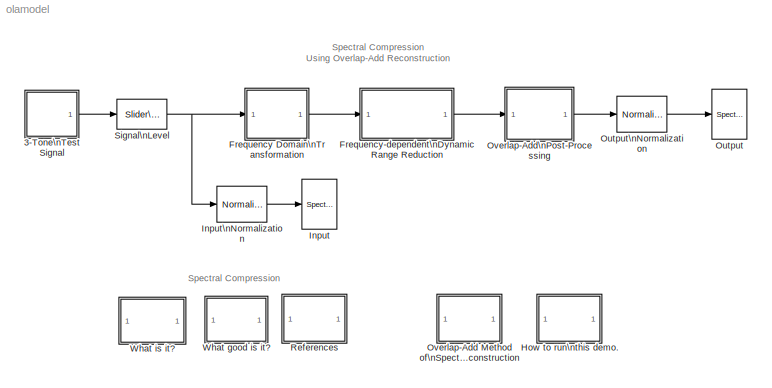
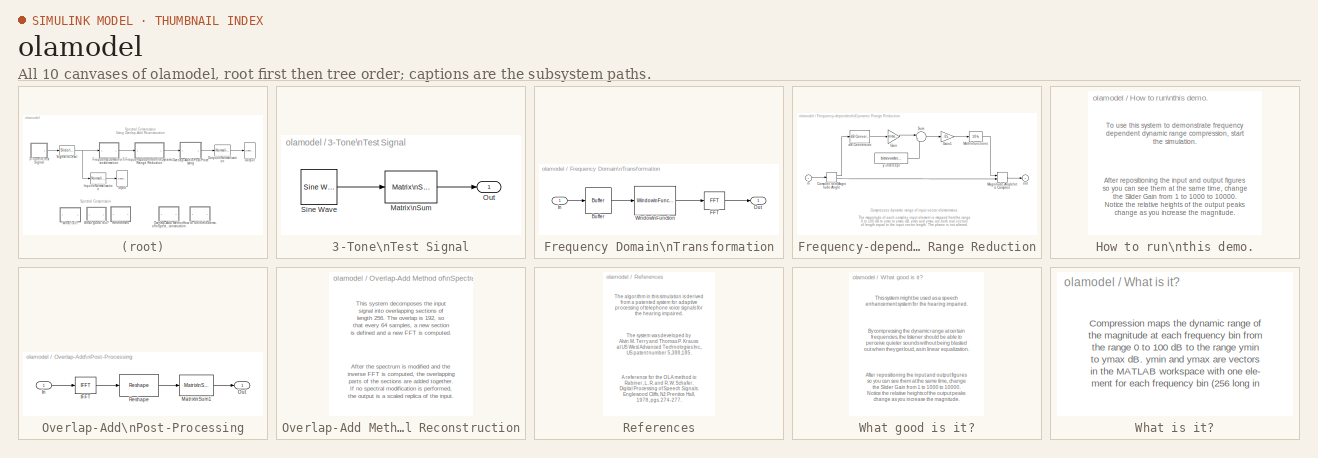
[diagram: thumbnail index - all 10 canvases of the model, root first then tree order]
MODEL olamodel
KIND model
CONFIG PostLoadFcn = olademo
BLOCK [SubSystem] 3-Tone\nTest Signal
  Ports = [0, 1]
  TreatAsAtomicUnit = off
BLOCK [Reference] 3-Tone\nTest Signal/Matrix\nSum  REF=dspmtrx3/Matrix\nSum
  Dim = Rows
  Ports = [1, 1]
  SourceBlock = dspmtrx3/Matrix\nSum
  SourceType = Matrix Sum
  accumFracLength = 30
  accumMode = Inherit via internal rule
  accumWordLength = 32
  additionalParams = off
  allowOverrides = on
  outputFracLength = 15
  outputMode = Same as input
  outputWordLength = 16
  overflowMode = off
  roundingMode = Floor
BLOCK [Outport] 3-Tone\nTest Signal/Out
  IconDisplay = Port number
BLOCK [Reference] 3-Tone\nTest Signal/Sine Wave  REF=dspsrcs4/Sine Wave
  Amplitude = 1
  CompMethod = Trigonometric fcn
  Frequency = [1024 2048 3072]
  OutComplex = Real
  Phase = 0
  Ports = [0, 1]
  ResetState = Restart at time zero
  SampleMode = Discrete
  SampleTime = 1/Fs
  SamplesPerFrame = 64
  SourceBlock = dspsrcs4/Sine Wave
  SourceType = Sine Wave
  TableSize = Speed
  additionalParams = off
  allowOverrides = on
  dataType = double
  fracBitsMode = Best precision
  numFracBits = 15
  udDataType = sfix(16)
  wordLen = 16
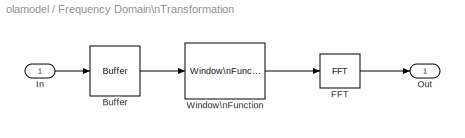
BLOCK [SubSystem] Frequency Domain\nTransformation
  Ports = [1, 1]
  TreatAsAtomicUnit = off
BLOCK [Reference] Frequency Domain\nTransformation/Buffer  REF=dspbuff3/Buffer
  N = 256
  Ports = [1, 1]
  SourceBlock = dspbuff3/Buffer
  SourceType = Buffer
  V = 192
  ic = 0
BLOCK [Reference] Frequency Domain\nTransformation/FFT  REF=dspxfrm3/FFT
  BitRevOrder = on
  CompMethod = Table lookup
  Ports = [1, 1]
  SkipNorm = off
  SourceBlock = dspxfrm3/FFT
  SourceType = FFT
  TableOpt = Speed
  accumFracLength = 30
  accumMode = Same as product output
  accumWordLength = 32
  additionalParams = off
  allowOverrides = on
  firstCoeffFracLength = 15
  firstCoeffMode = User-defined
  firstCoeffWordLength = 16
  outputFracLength = 15
  outputMode = Same as input
  outputWordLength = 16
  overflowMode = off
  prodOutputFracLength = 30
  prodOutputMode = Same as input
  prodOutputWordLength = 32
  roundingMode = Floor
BLOCK [Inport] Frequency Domain\nTransformation/In
  IconDisplay = Port number
BLOCK [Outport] Frequency Domain\nTransformation/Out
  IconDisplay = Port number
BLOCK [Reference] Frequency Domain\nTransformation/Window\nFunction  REF=dspsigops/Window\nFunction
  N = 64
  OptParams = off
  Ports = [1, 1]
  Rs = 50
  SourceBlock = dspsigops/Window\nFunction
  SourceType = Window Function
  UserParams = {1.0}
  UserWindow = hamming
  additionalParams = off
  allowOverrides = on
  beta = 10
  dataType = double
  firstCoeffFracLength = 15
  firstCoeffMode = Same word length as input
  firstCoeffWordLength = 16
  fracBitsMode = Best precision
  numFracBits = 15
  outputFracLength = 15
  outputMode = Same as input
  outputWordLength = 16
  overflowMode = off
  prodOutputFracLength = 15
  prodOutputMode = Inherit via internal rule
  prodOutputWordLength = 16
  roundingMode = Floor
  sampmode = Continuous
  samptime = 1
  udDataType = sfix(16)
  winmode = Apply window to input
  winsamp = Symmetric
  wintype = Hamming
  wordLen = 16
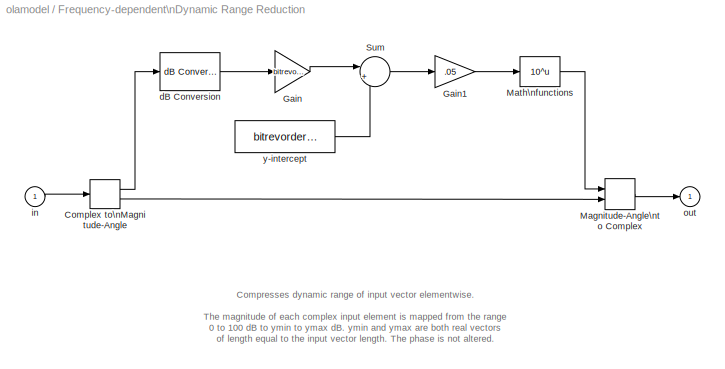
BLOCK [SubSystem] Frequency-dependent\nDynamic Range Reduction
  MaskDisplay = disp('Frequency\\n\\nCompression');\n
  MaskIconFrame = on
  MaskIconOpaque = on
  MaskIconRotate = none
  MaskIconUnits = autoscale
  MaskType = Complex Compression
  Ports = [1, 1]
  TreatAsAtomicUnit = off
BLOCK [ComplexToMagnitudeAngle] Frequency-dependent\nDynamic Range Reduction/Complex to\nMagnitude-Angle
  Output = Magnitude and angle
  Ports = [1, 2]
BLOCK [Gain] Frequency-dependent\nDynamic Range Reduction/Gain
  Gain = bitrevorder(0.01*(ymax-ymin).')
BLOCK [Gain] Frequency-dependent\nDynamic Range Reduction/Gain1
  Gain = .05
BLOCK [MagnitudeAngleToComplex] Frequency-dependent\nDynamic Range Reduction/Magnitude-Angle\nto Complex
  Input = Magnitude and angle
  Ports = [2, 1]
BLOCK [Math] Frequency-dependent\nDynamic Range Reduction/Math\nfunctions
  Operator = 10^u
  Ports = [1, 1]
BLOCK [Sum] Frequency-dependent\nDynamic Range Reduction/Sum
  IconShape = round
  Inputs = |++
  Ports = [2, 1]
BLOCK [Reference] Frequency-dependent\nDynamic Range Reduction/dB Conversion  REF=dspmathops/dB Conversion
  Ports = [1, 1]
  R = 1
  ShowPortLabels = on
  SourceBlock = dspmathops/dB Conversion
  SourceType = dB Conversion
  dBtype = dB
  fuzz = on
  intype = Amplitude
BLOCK [Inport] Frequency-dependent\nDynamic Range Reduction/in
  IconDisplay = Port number
BLOCK [Outport] Frequency-dependent\nDynamic Range Reduction/out
  IconDisplay = Port number
  InitialOutput = 0
BLOCK [Constant] Frequency-dependent\nDynamic Range Reduction/y-intercept
  Value = bitrevorder(ymin.')
  VectorParams1D = off
BLOCK [SubSystem] How to run\nthis demo.
  MaskDisplay = disp('Double\\nClick\\nHere')
  MaskIconFrame = on
  MaskIconOpaque = on
  MaskIconRotate = none
  MaskIconUnits = autoscale
  Ports = []
  TreatAsAtomicUnit = off
BLOCK [Reference] Input  REF=dspsnks4/Spectrum\nScope
  AxisGrid = on
  AxisLegend = off
  AxisProperties = off
  AxisZoom = on
  BufferSize = 128
  DisplayProperties = off
  Domain = Frequency
  FFTlength = 64
  FigPos = [50 147 414 338]
  FrameNumber = off
  HorizSpan = 1
  InheritXIncr = on
  LineProperties = off
  Memory = off
  OpenScopeAtSimStart = on
  OpenScopeImmediately = off
  Overlap = 64
  Ports = [1]
  ScopeProperties = on
  ShowPortLabels = off
  SourceBlock = dspsnks4/Spectrum\nScope
  SourceType = Spectrum Scope
  UseBuffer = off
  XIncr = 1
  XLabel = Samples
  XRange = [0...Fs/2]
  XUnits = Hertz
  YLabel = Magnitude
  YMax = 0.12
  YMin = 0
  YUnits = Magnitude
  inpFftLenInherit = off
  numAvg = 2
BLOCK [Reference] Input\nNormalization  REF=dspmathops/Normalization
  Bias = 1e-10
  NormType = 2-norm
  Ports = [1, 1]
  SourceBlock = dspmathops/Normalization
  SourceType = Normalization
  accumFracLength = 30
  accumMode = Same as product output
  accumWordLength = 32
  additionalParams = off
  allowOverrides = on
  outputFracLength = 32
  outputMode = Same as accumulator
  outputWordLength = 32
  overflowMode = off
  prodOutputFracLength = 32
  prodOutputMode = Same as input
  prodOutputWordLength = 32
  roundingMode = Floor
BLOCK [Reference] Output  REF=dspsnks4/Spectrum\nScope
  AxisGrid = on
  AxisLegend = off
  AxisProperties = off
  AxisZoom = on
  BufferSize = 128
  DisplayProperties = off
  Domain = Frequency
  FFTlength = 64
  FigPos = [500 147 415 337]
  FrameNumber = off
  HorizSpan = 1
  InheritXIncr = on
  LineProperties = off
  Memory = off
  OpenScopeAtSimStart = on
  OpenScopeImmediately = off
  Overlap = 64
  Ports = [1]
  ScopeProperties = on
  ShowPortLabels = off
  SourceBlock = dspsnks4/Spectrum\nScope
  SourceType = Spectrum Scope
  UseBuffer = off
  XIncr = 1
  XLabel = Samples
  XRange = [0...Fs/2]
  XUnits = Hertz
  YLabel = Magnitude
  YMax = 0.12
  YMin = 0
  YUnits = Magnitude
  inpFftLenInherit = off
  numAvg = 2
BLOCK [Reference] Output\nNormalization  REF=dspmathops/Normalization
  Bias = 1e-10
  NormType = 2-norm
  Ports = [1, 1]
  SourceBlock = dspmathops/Normalization
  SourceType = Normalization
  accumFracLength = 30
  accumMode = Same as product output
  accumWordLength = 32
  additionalParams = off
  allowOverrides = on
  outputFracLength = 32
  outputMode = Same as accumulator
  outputWordLength = 32
  overflowMode = off
  prodOutputFracLength = 32
  prodOutputMode = Same as input
  prodOutputWordLength = 32
  roundingMode = Floor
BLOCK [SubSystem] Overlap-Add Method of\nSpectral Reconstruction
  MaskDisplay = disp('Double\\nClick\\nHere')
  MaskIconFrame = on
  MaskIconOpaque = on
  MaskIconRotate = none
  MaskIconUnits = autoscale
  Ports = []
  TreatAsAtomicUnit = off
BLOCK [SubSystem] Overlap-Add\nPost-Processing
  Ports = [1, 1]
  TreatAsAtomicUnit = off
BLOCK [Reference] Overlap-Add\nPost-Processing/IFFT  REF=dspxfrm3/IFFT
  BitRevOrder = on
  CompMethod = Table lookup
  Ports = [1, 1]
  SkipNorm = off
  SourceBlock = dspxfrm3/IFFT
  SourceType = IFFT
  TableOpt = Speed
  accumFracLength = 30
  accumMode = Same as product output
  accumWordLength = 32
  additionalParams = off
  allowOverrides = on
  cs_in = on
  firstCoeffFracLength = 15
  firstCoeffMode = User-defined
  firstCoeffWordLength = 16
  mode = Real
  outputFracLength = 15
  outputMode = Same as input
  outputWordLength = 16
  overflowMode = off
  prodOutputFracLength = 30
  prodOutputMode = Same as input
  prodOutputWordLength = 32
  roundingMode = Floor
BLOCK [Inport] Overlap-Add\nPost-Processing/In
  IconDisplay = Port number
BLOCK [Reference] Overlap-Add\nPost-Processing/Matrix\nSum1  REF=dspmtrx3/Matrix\nSum
  Dim = Rows
  Ports = [1, 1]
  SourceBlock = dspmtrx3/Matrix\nSum
  SourceType = Matrix Sum
  accumFracLength = 30
  accumMode = Inherit via internal rule
  accumWordLength = 32
  additionalParams = off
  allowOverrides = on
  outputFracLength = 15
  outputMode = Same as input
  outputWordLength = 16
  overflowMode = off
  roundingMode = Floor
BLOCK [Outport] Overlap-Add\nPost-Processing/Out
  IconDisplay = Port number
BLOCK [Reference] Overlap-Add\nPost-Processing/Reshape  REF=simulink/Math\nOperations/Reshape
  OutputDimensionality = Customize
  OutputDimensions = [64 4]
  Ports = [1, 1]
  SourceBlock = simulink/Math\nOperations/Reshape
  SourceType = Reshape
BLOCK [SubSystem] References
  MaskDisplay = disp('Double\\nClick\\nHere')
  MaskIconFrame = on
  MaskIconOpaque = on
  MaskIconRotate = none
  MaskIconUnits = autoscale
  Ports = []
  TreatAsAtomicUnit = off
BLOCK [Reference] Signal\nLevel  REF=simulink/Math\nOperations/Slider\nGain
  Ports = [1, 1]
  ShowPortLabels = on
  SourceBlock = simulink/Math\nOperations/Slider\nGain
  SourceType = Slider Gain
  gain = 1500.8
  high = 7500
  low = 1
BLOCK [SubSystem] What good is it?
  MaskDisplay = disp('Double\\nClick\\nHere')
  MaskIconFrame = on
  MaskIconOpaque = on
  MaskIconRotate = none
  MaskIconUnits = autoscale
  Ports = []
  TreatAsAtomicUnit = off
BLOCK [SubSystem] What is it?
  MaskDisplay = disp('Double\\nClick\\nHere')
  MaskIconFrame = on
  MaskIconOpaque = on
  MaskIconRotate = none
  MaskIconUnits = autoscale
  Ports = []
  TreatAsAtomicUnit = off
ANNOTATION (root): Spectral Compression
ANNOTATION (root): Spectral Compression\nUsing Overlap-Add Reconstruction
ANNOTATION Frequency-dependent\nDynamic Range Reduction: Compresses dynamic range of input vector elementwise.\n\n The magnitude of each complex input element is mapped from the range\n 0 to 100 dB to ymin to ymax dB. ymin and ymax are both real vectors\nof length equal to the input vector length. The phase is not altered.\n\nNote that the frequency-domain input signal to this block is in\nbit-reversed order, for more efficient FFT execution. Therefore,...<+134ch>
ANNOTATION How to run\nthis demo.: After repositioning the input and output figures\nso you can see them at the same time, change\nthe Slider Gain from 1 to 1000 to 10000.\nNotice the relative heights of the output peaks\nchange as you increase the magnitude.
ANNOTATION How to run\nthis demo.: To use this system to demonstrate frequency\ndependent dynamic range compression, start \nthe simulation.
ANNOTATION Overlap-Add Method of\nSpectral Reconstruction: After the spectrum is modified and the\ninverse FFT is computed, the overlapping\nparts of the sections are added together.\nIf no spectral modification is performed,\nthe output is a scaled replica of the input.
ANNOTATION Overlap-Add Method of\nSpectral Reconstruction: This system decomposes the input\nsignal into overlapping sections of \nlength 256. The overlap is 192, so \nthat every 64 samples, a new section\nis defined and a new FFT is computed.
ANNOTATION References: A reference for the OLA method is:\nRabiner, L. R. and R. W. Schafer.\nDigital Processing of Speech Signals.\nEnglewood Cliffs, NJ: Prentice Hall,\n1978, pgs. 274-277.
ANNOTATION References: The algorithm in this simulation is derived\nfrom a patented system for adaptive\nprocessing of telephone voice signals for\nthe hearing impaired.
ANNOTATION References: The system was developed by\nAlvin M. Terry and Thomas P. Krauss\nat US West Advanced Technologies Inc.,\nUS patent number 5,388,185.
ANNOTATION What good is it?: After repositioning the input and output figures\nso you can see them at the same time, change\nthe Slider Gain from 1 to 1000 to 10000.\nNotice the relative heights of the output peaks\nchange as you increase the magnitude.
ANNOTATION What good is it?: By compressing the dynamic range at certain\nfrequencies, the listener should be able to \nperceive quieter sounds without being blasted\nout when they get loud, as in linear equalization.
ANNOTATION What good is it?: This system might be used as a speech\nenhancement system for the hearing impaired.
ANNOTATION What is it?: Compression maps the dynamic range of \nthe magnitude at each frequency bin from\nthe range 0 to 100 dB to the range ymin \nto ymax dB. ymin and ymax are vectors\nin the MATLAB workspace with one ele-\nment for each frequency bin (256 long in\nthis case). The phase is not altered. This\nis a non-linear spectral modification
LINE 3-Tone\nTest Signal/Matrix\nSum:1 -> 3-Tone\nTest Signal/Out:1
LINE 3-Tone\nTest Signal/Sine Wave:1 -> 3-Tone\nTest Signal/Matrix\nSum:1
LINE 3-Tone\nTest Signal:1 -> Signal\nLevel:1
LINE Frequency Domain\nTransformation/Buffer:1 -> Frequency Domain\nTransformation/Window\nFunction:1
LINE Frequency Domain\nTransformation/FFT:1 -> Frequency Domain\nTransformation/Out:1
LINE Frequency Domain\nTransformation/In:1 -> Frequency Domain\nTransformation/Buffer:1
LINE Frequency Domain\nTransformation/Window\nFunction:1 -> Frequency Domain\nTransformation/FFT:1
LINE Frequency Domain\nTransformation:1 -> Frequency-dependent\nDynamic Range Reduction:1
LINE Frequency-dependent\nDynamic Range Reduction/Complex to\nMagnitude-Angle:1 -> Frequency-dependent\nDynamic Range Reduction/dB Conversion:1
LINE Frequency-dependent\nDynamic Range Reduction/Complex to\nMagnitude-Angle:2 -> Frequency-dependent\nDynamic Range Reduction/Magnitude-Angle\nto Complex:2
LINE Frequency-dependent\nDynamic Range Reduction/Gain1:1 -> Frequency-dependent\nDynamic Range Reduction/Math\nfunctions:1
LINE Frequency-dependent\nDynamic Range Reduction/Gain:1 -> Frequency-dependent\nDynamic Range Reduction/Sum:1
LINE Frequency-dependent\nDynamic Range Reduction/Magnitude-Angle\nto Complex:1 -> Frequency-dependent\nDynamic Range Reduction/out:1
LINE Frequency-dependent\nDynamic Range Reduction/Math\nfunctions:1 -> Frequency-dependent\nDynamic Range Reduction/Magnitude-Angle\nto Complex:1
LINE Frequency-dependent\nDynamic Range Reduction/Sum:1 -> Frequency-dependent\nDynamic Range Reduction/Gain1:1
LINE Frequency-dependent\nDynamic Range Reduction/dB Conversion:1 -> Frequency-dependent\nDynamic Range Reduction/Gain:1
LINE Frequency-dependent\nDynamic Range Reduction/in:1 -> Frequency-dependent\nDynamic Range Reduction/Complex to\nMagnitude-Angle:1
LINE Frequency-dependent\nDynamic Range Reduction/y-intercept:1 -> Frequency-dependent\nDynamic Range Reduction/Sum:2
LINE Frequency-dependent\nDynamic Range Reduction:1 -> Overlap-Add\nPost-Processing:1
LINE Input\nNormalization:1 -> Input:1
LINE Output\nNormalization:1 -> Output:1
LINE Overlap-Add\nPost-Processing/IFFT:1 -> Overlap-Add\nPost-Processing/Reshape:1
LINE Overlap-Add\nPost-Processing/In:1 -> Overlap-Add\nPost-Processing/IFFT:1
LINE Overlap-Add\nPost-Processing/Matrix\nSum1:1 -> Overlap-Add\nPost-Processing/Out:1
LINE Overlap-Add\nPost-Processing/Reshape:1 -> Overlap-Add\nPost-Processing/Matrix\nSum1:1
LINE Overlap-Add\nPost-Processing:1 -> Output\nNormalization:1
NET Signal\nLevel:1 -> Frequency Domain\nTransformation:1, Input\nNormalization:1
note: NET lines group one-source signal fan-out (src -> all destinations, sorted); 1:1 wires keep LINE
